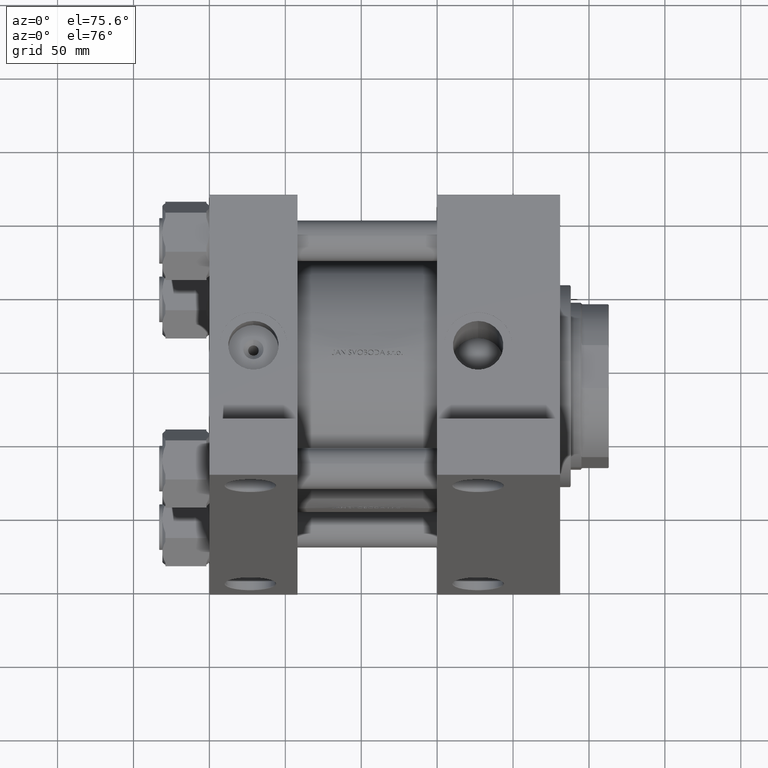
[diagram: clean part render]
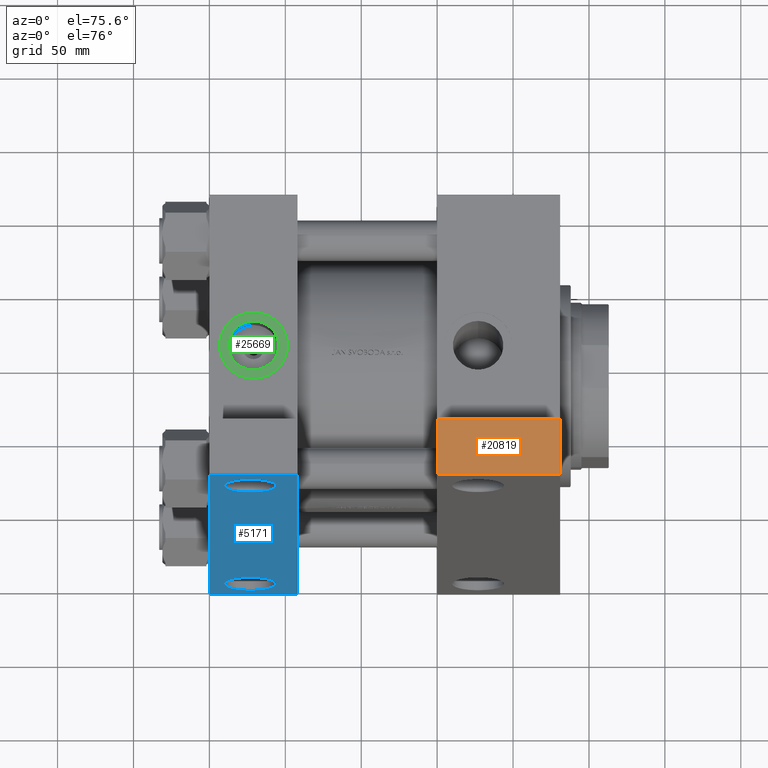
[diagram: same view with three faces highlighted in distinct colors, each labeled with its STEP entity id]
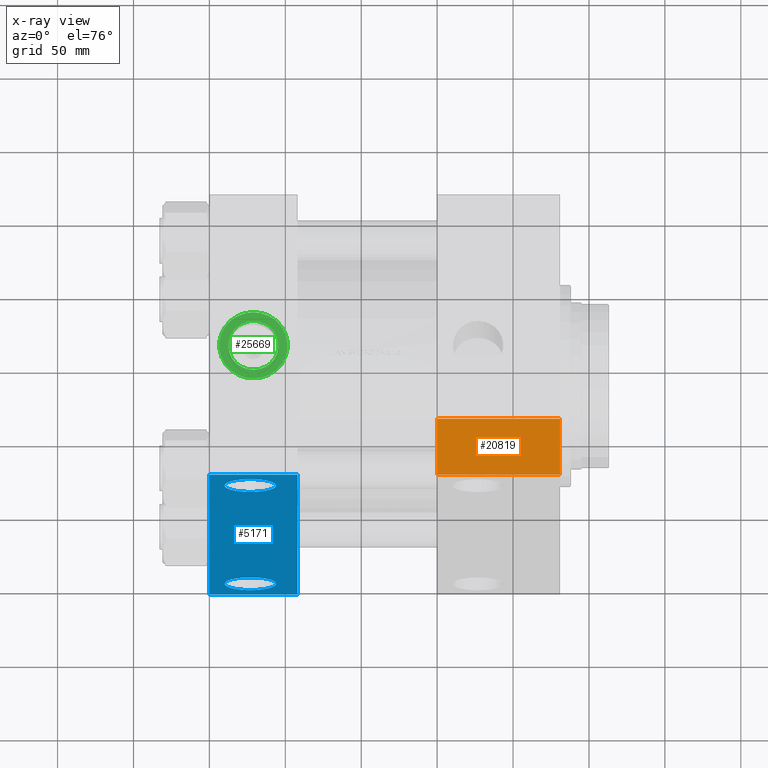
[diagram: x-ray of the same camera — body ghosted, the three highlighted faces saturated]
A machine part, auxiliary view with three faces highlighted in distinct colors.
The next image is the same camera in x-ray (body ghosted, the three faces saturated) — at least one of them is partly hidden behind the body in this view.
Their STEP definitions:

[orange] entity #20819 — the highlighted planar face has unit normal (-0, 0, 1).
#117 = DIRECTION ( 'NONE',  ( -1.000000000000000000, 3.426614273534433207E-16, -0.000000000000000000 ) ) ;
#1903 = EDGE_CURVE ( 'NONE', #18083, #21309, #15664, .T. ) ;
#3632 = CARTESIAN_POINT ( 'NONE',  ( 231.0000000000000284, -159.0000000000000000, -64.50000000000002842 ) ) ;
#5710 = CARTESIAN_POINT ( 'NONE',  ( 150.0000000000000284, -158.9999999999999716, -102.5000000000000284 ) ) ;
#6307 = PLANE ( 'NONE',  #13808 ) ;
#6552 = FACE_OUTER_BOUND ( 'NONE', #45890, .T. ) ;
#10823 = CARTESIAN_POINT ( 'NONE',  ( 150.0000000000000284, -158.9999999999999716, -64.50000000000002842 ) ) ;
#11135 = ORIENTED_EDGE ( 'NONE', *, *, #12142, .F. ) ;
#12142 = EDGE_CURVE ( 'NONE', #31130, #18083, #26023, .T. ) ;
#13690 = EDGE_CURVE ( 'NONE', #31130, #25681, #44151, .T. ) ;
#13808 = AXIS2_PLACEMENT_3D ( 'NONE', #14582, #36231, #29175 ) ;
#14582 = CARTESIAN_POINT ( 'NONE',  ( 150.0000000000000284, -158.9999999999999716, -64.50000000000002842 ) ) ;
#15664 = LINE ( 'NONE', #30495, #29460 ) ;
#18083 = VERTEX_POINT ( 'NONE', #39693 ) ;
#20053 = EDGE_CURVE ( 'NONE', #25681, #21309, #25013, .T. ) ;
#20819 = ADVANCED_FACE ( 'NONE', ( #6552 ), #6307, .T. ) ;
#21102 = VECTOR ( 'NONE', #23073, 1000.000000000000000 ) ;
#21309 = VERTEX_POINT ( 'NONE', #5710 ) ;
#23073 = DIRECTION ( 'NONE',  ( 0.000000000000000000, 0.000000000000000000, -1.000000000000000000 ) ) ;
#24286 = ORIENTED_EDGE ( 'NONE', *, *, #13690, .T. ) ;
#25013 = LINE ( 'NONE', #36466, #26445 ) ;
#25681 = VERTEX_POINT ( 'NONE', #35400 ) ;
#26023 = LINE ( 'NONE', #3632, #21102 ) ;
#26445 = VECTOR ( 'NONE', #40122, 1000.000000000000000 ) ;
#29175 = DIRECTION ( 'NONE',  ( 1.000000000000000000, -3.426614273534433207E-16, 0.000000000000000000 ) ) ;
#29460 = VECTOR ( 'NONE', #36851, 1000.000000000000000 ) ;
#30394 = ORIENTED_EDGE ( 'NONE', *, *, #20053, .T. ) ;
#30495 = CARTESIAN_POINT ( 'NONE',  ( 150.0000000000000284, -158.9999999999999716, -102.5000000000000284 ) ) ;
#31130 = VERTEX_POINT ( 'NONE', #34893 ) ;
#34893 = CARTESIAN_POINT ( 'NONE',  ( 231.0000000000000284, -159.0000000000000000, -64.50000000000002842 ) ) ;
#35400 = CARTESIAN_POINT ( 'NONE',  ( 150.0000000000000284, -158.9999999999999716, -64.50000000000002842 ) ) ;
#35470 = ORIENTED_EDGE ( 'NONE', *, *, #1903, .F. ) ;
#36231 = DIRECTION ( 'NONE',  ( -3.426614273534433207E-16, -1.000000000000000000, 0.000000000000000000 ) ) ;
#36466 = CARTESIAN_POINT ( 'NONE',  ( 150.0000000000000284, -158.9999999999999716, -64.50000000000002842 ) ) ;
#36851 = DIRECTION ( 'NONE',  ( -1.000000000000000000, 3.426614273534433207E-16, -0.000000000000000000 ) ) ;
#39044 = VECTOR ( 'NONE', #117, 1000.000000000000000 ) ;
#39693 = CARTESIAN_POINT ( 'NONE',  ( 231.0000000000000284, -159.0000000000000000, -102.5000000000000284 ) ) ;
#40122 = DIRECTION ( 'NONE',  ( 0.000000000000000000, 0.000000000000000000, -1.000000000000000000 ) ) ;
#44151 = LINE ( 'NONE', #10823, #39044 ) ;
#45890 = EDGE_LOOP ( 'NONE', ( #35470, #11135, #24286, #30394 ) ) ;

[blue] entity #5171 — the highlighted planar face has unit normal (0, -1, -0).
#196 = DIRECTION ( 'NONE',  ( -0.000000000000000000, -1.353930517835556973E-16, 1.000000000000000000 ) ) ;
#382 = VERTEX_POINT ( 'NONE', #44525 ) ;
#1699 = DIRECTION ( 'NONE',  ( 0.000000000000000000, -1.000000000000000000, -1.353930517835556727E-16 ) ) ;
#3182 = VERTEX_POINT ( 'NONE', #7536 ) ;
#5171 = ADVANCED_FACE ( 'NONE', ( #19018, #11722, #33161 ), #41402, .T. ) ;
#5480 = EDGE_CURVE ( 'NONE', #30472, #10961, #45830, .T. ) ;
#6694 = CARTESIAN_POINT ( 'NONE',  ( 58.00000000000000000, -158.9999999999999716, -102.4999999999999574 ) ) ;
#6818 = CIRCLE ( 'NONE', #19238, 16.99949999999981998 ) ;
#6829 = CARTESIAN_POINT ( 'NONE',  ( 43.99949999999981998, -130.0000000000000284, -102.5000000000000000 ) ) ;
#6918 = AXIS2_PLACEMENT_3D ( 'NONE', #18784, #29971, #26556 ) ;
#7306 = VERTEX_POINT ( 'NONE', #18657 ) ;
#7536 = CARTESIAN_POINT ( 'NONE',  ( 4.020885092637420281E-14, 159.0000000000000284, -102.5000000000000142 ) ) ;
#7607 = ORIENTED_EDGE ( 'NONE', *, *, #5480, .T. ) ;
#7723 = DIRECTION ( 'NONE',  ( 0.000000000000000000, 1.000000000000000000, 0.000000000000000000 ) ) ;
#8017 = AXIS2_PLACEMENT_3D ( 'NONE', #16221, #34475, #23508 ) ;
#9486 = CIRCLE ( 'NONE', #18028, 16.99949999999981998 ) ;
#9554 = EDGE_CURVE ( 'NONE', #3182, #7306, #10727, .T. ) ;
#9754 = EDGE_CURVE ( 'NONE', #34811, #7306, #23581, .T. ) ;
#10081 = EDGE_LOOP ( 'NONE', ( #19321, #23514, #25444, #40936 ) ) ;
#10194 = DIRECTION ( 'NONE',  ( -0.000000000000000000, -1.353930517835556973E-16, 1.000000000000000000 ) ) ;
#10727 = LINE ( 'NONE', #44295, #35767 ) ;
#10961 = VERTEX_POINT ( 'NONE', #44444 ) ;
#11722 = FACE_BOUND ( 'NONE', #25590, .T. ) ;
#12910 = EDGE_CURVE ( 'NONE', #382, #31520, #9486, .T. ) ;
#14087 = CARTESIAN_POINT ( 'NONE',  ( 26.99999999999999289, -130.0000000000000284, -102.5000000000000000 ) ) ;
#15560 = EDGE_CURVE ( 'NONE', #10961, #30472, #36789, .T. ) ;
#16221 = CARTESIAN_POINT ( 'NONE',  ( 26.99999999999999289, 129.9999999999999716, -102.4999999999999716 ) ) ;
#16285 = EDGE_CURVE ( 'NONE', #3182, #45602, #30206, .T. ) ;
#17018 = CARTESIAN_POINT ( 'NONE',  ( 58.00000000000000000, 102.5000000000000284, -102.4999999999999716 ) ) ;
#18028 = AXIS2_PLACEMENT_3D ( 'NONE', #40153, #40396, #35778 ) ;
#18077 = CARTESIAN_POINT ( 'NONE',  ( 10.00049999999992245, 129.9999999999999716, -102.4999999999999716 ) ) ;
#18081 = CARTESIAN_POINT ( 'NONE',  ( 4.020885092637420281E-14, 159.0000000000000284, -102.5000000000000142 ) ) ;
#18274 = DIRECTION ( 'NONE',  ( 0.000000000000000000, -1.000000000000000000, -1.353930517835556727E-16 ) ) ;
#18657 = CARTESIAN_POINT ( 'NONE',  ( 1.265082713488378367E-15, -158.9999999999999716, -102.4999999999999574 ) ) ;
#18784 = CARTESIAN_POINT ( 'NONE',  ( 58.00000000000000000, 102.5000000000000284, -102.4999999999999716 ) ) ;
#19018 = FACE_BOUND ( 'NONE', #45108, .T. ) ;
#19238 = AXIS2_PLACEMENT_3D ( 'NONE', #14087, #10194, #40357 ) ;
#19321 = ORIENTED_EDGE ( 'NONE', *, *, #9554, .F. ) ;
#20180 = LINE ( 'NONE', #17018, #35813 ) ;
#22113 = EDGE_CURVE ( 'NONE', #31520, #382, #6818, .T. ) ;
#23508 = DIRECTION ( 'NONE',  ( 0.000000000000000000, 1.000000000000000000, 0.000000000000000000 ) ) ;
#23514 = ORIENTED_EDGE ( 'NONE', *, *, #16285, .T. ) ;
#23581 = LINE ( 'NONE', #31366, #29561 ) ;
#25444 = ORIENTED_EDGE ( 'NONE', *, *, #33282, .T. ) ;
#25590 = EDGE_LOOP ( 'NONE', ( #45508, #39007 ) ) ;
#26311 = DIRECTION ( 'NONE',  ( 1.000000000000000000, 0.000000000000000000, 0.000000000000000000 ) ) ;
#26556 = DIRECTION ( 'NONE',  ( 0.000000000000000000, 1.000000000000000000, 1.353930517835556973E-16 ) ) ;
#28659 = AXIS2_PLACEMENT_3D ( 'NONE', #41047, #196, #7723 ) ;
#29561 = VECTOR ( 'NONE', #34547, 1000.000000000000000 ) ;
#29971 = DIRECTION ( 'NONE',  ( 0.000000000000000000, 1.353930517835556973E-16, -1.000000000000000000 ) ) ;
#30206 = LINE ( 'NONE', #18081, #36011 ) ;
#30472 = VERTEX_POINT ( 'NONE', #18077 ) ;
#31366 = CARTESIAN_POINT ( 'NONE',  ( 1.265082713488378367E-15, -158.9999999999999716, -102.4999999999999574 ) ) ;
#31520 = VERTEX_POINT ( 'NONE', #6829 ) ;
#33161 = FACE_OUTER_BOUND ( 'NONE', #10081, .T. ) ;
#33282 = EDGE_CURVE ( 'NONE', #45602, #34811, #20180, .T. ) ;
#34447 = CARTESIAN_POINT ( 'NONE',  ( 58.00000000000004263, 159.0000000000000284, -102.5000000000000142 ) ) ;
#34475 = DIRECTION ( 'NONE',  ( -0.000000000000000000, -1.353930517835556973E-16, 1.000000000000000000 ) ) ;
#34547 = DIRECTION ( 'NONE',  ( -1.000000000000000000, -0.000000000000000000, -0.000000000000000000 ) ) ;
#34811 = VERTEX_POINT ( 'NONE', #6694 ) ;
#35033 = ORIENTED_EDGE ( 'NONE', *, *, #15560, .T. ) ;
#35767 = VECTOR ( 'NONE', #18274, 1000.000000000000000 ) ;
#35778 = DIRECTION ( 'NONE',  ( 0.000000000000000000, 1.000000000000000000, 0.000000000000000000 ) ) ;
#35813 = VECTOR ( 'NONE', #1699, 1000.000000000000000 ) ;
#36011 = VECTOR ( 'NONE', #26311, 1000.000000000000000 ) ;
#36789 = CIRCLE ( 'NONE', #8017, 16.99950000000005446 ) ;
#39007 = ORIENTED_EDGE ( 'NONE', *, *, #22113, .T. ) ;
#40153 = CARTESIAN_POINT ( 'NONE',  ( 26.99999999999999289, -130.0000000000000284, -102.5000000000000000 ) ) ;
#40357 = DIRECTION ( 'NONE',  ( 0.000000000000000000, 1.000000000000000000, 0.000000000000000000 ) ) ;
#40396 = DIRECTION ( 'NONE',  ( -0.000000000000000000, -1.353930517835556973E-16, 1.000000000000000000 ) ) ;
#40936 = ORIENTED_EDGE ( 'NONE', *, *, #9754, .T. ) ;
#41047 = CARTESIAN_POINT ( 'NONE',  ( 26.99999999999999289, 129.9999999999999716, -102.4999999999999716 ) ) ;
#41402 = PLANE ( 'NONE',  #6918 ) ;
#44295 = CARTESIAN_POINT ( 'NONE',  ( 0.000000000000000000, 102.5000000000000284, -102.4999999999999716 ) ) ;
#44444 = CARTESIAN_POINT ( 'NONE',  ( 43.99950000000006867, 129.9999999999999716, -102.4999999999999716 ) ) ;
#44525 = CARTESIAN_POINT ( 'NONE',  ( 10.00050000000017292, -130.0000000000000284, -102.5000000000000000 ) ) ;
#45108 = EDGE_LOOP ( 'NONE', ( #7607, #35033 ) ) ;
#45508 = ORIENTED_EDGE ( 'NONE', *, *, #12910, .T. ) ;
#45602 = VERTEX_POINT ( 'NONE', #34447 ) ;
#45830 = CIRCLE ( 'NONE', #28659, 16.99950000000005446 ) ;

[green] entity #25669 — the highlighted planar face has unit normal (0, -0, 1).
#248 = CARTESIAN_POINT ( 'NONE',  ( 29.00000000000000000, -102.2999999999999687, 1.389513504257422483E-14 ) ) ;
#662 = EDGE_CURVE ( 'NONE', #33704, #8465, #18518, .T. ) ;
#673 = DIRECTION ( 'NONE',  ( 0.000000000000000000, 0.000000000000000000, -1.000000000000000000 ) ) ;
#1179 = CIRCLE ( 'NONE', #26809, 22.50000000000000711 ) ;
#3566 = CARTESIAN_POINT ( 'NONE',  ( 29.00000000000000000, -102.2999999999999687, 1.389513504257422798E-14 ) ) ;
#4117 = DIRECTION ( 'NONE',  ( 0.000000000000000000, -1.000000000000000000, -8.673617379884036705E-17 ) ) ;
#4334 = FACE_BOUND ( 'NONE', #40822, .T. ) ;
#4544 = AXIS2_PLACEMENT_3D ( 'NONE', #23274, #20112, #673 ) ;
#4634 = CARTESIAN_POINT ( 'NONE',  ( 29.00000000000000000, -102.2999999999999687, 1.389513504257422483E-14 ) ) ;
#5415 = ORIENTED_EDGE ( 'NONE', *, *, #662, .F. ) ;
#6505 = DIRECTION ( 'NONE',  ( 0.000000000000000000, 0.000000000000000000, -1.000000000000000000 ) ) ;
#7512 = ORIENTED_EDGE ( 'NONE', *, *, #46608, .T. ) ;
#7755 = AXIS2_PLACEMENT_3D ( 'NONE', #42935, #34256, #42039 ) ;
#8465 = VERTEX_POINT ( 'NONE', #16402 ) ;
#10379 = VERTEX_POINT ( 'NONE', #11062 ) ;
#10927 = ORIENTED_EDGE ( 'NONE', *, *, #24187, .F. ) ;
#11062 = CARTESIAN_POINT ( 'NONE',  ( 29.00000000000000000, -102.2999999999999687, -22.49999999999999289 ) ) ;
#11886 = PLANE ( 'NONE',  #7755 ) ;
#12188 = DIRECTION ( 'NONE',  ( 0.000000000000000000, -1.000000000000000000, -8.673617379884036705E-17 ) ) ;
#13104 = CIRCLE ( 'NONE', #30178, 16.62000000000000099 ) ;
#13339 = EDGE_LOOP ( 'NONE', ( #26224, #7512 ) ) ;
#14302 = DIRECTION ( 'NONE',  ( 0.000000000000000000, -1.000000000000000000, -8.673617379884036705E-17 ) ) ;
#15912 = CIRCLE ( 'NONE', #43095, 22.50000000000000711 ) ;
#16018 = FACE_OUTER_BOUND ( 'NONE', #13339, .T. ) ;
#16402 = CARTESIAN_POINT ( 'NONE',  ( 29.00000000000000355, -102.2999999999999687, 16.62000000000001165 ) ) ;
#18518 = CIRCLE ( 'NONE', #4544, 16.62000000000000099 ) ;
#20112 = DIRECTION ( 'NONE',  ( 0.000000000000000000, -1.000000000000000000, -8.673617379884036705E-17 ) ) ;
#23274 = CARTESIAN_POINT ( 'NONE',  ( 29.00000000000000000, -102.2999999999999687, 1.389513504257422798E-14 ) ) ;
#24187 = EDGE_CURVE ( 'NONE', #8465, #33704, #13104, .T. ) ;
#24296 = CARTESIAN_POINT ( 'NONE',  ( 29.00000000000000355, -102.2999999999999687, 22.50000000000002132 ) ) ;
#25669 = ADVANCED_FACE ( 'NONE', ( #4334, #16018 ), #11886, .T. ) ;
#26224 = ORIENTED_EDGE ( 'NONE', *, *, #42398, .T. ) ;
#26809 = AXIS2_PLACEMENT_3D ( 'NONE', #248, #4117, #47677 ) ;
#30178 = AXIS2_PLACEMENT_3D ( 'NONE', #3566, #14302, #6505 ) ;
#33704 = VERTEX_POINT ( 'NONE', #35344 ) ;
#34256 = DIRECTION ( 'NONE',  ( 0.000000000000000000, -1.000000000000000000, -8.673617379884036705E-17 ) ) ;
#35344 = CARTESIAN_POINT ( 'NONE',  ( 29.00000000000000000, -102.2999999999999687, -16.61999999999998678 ) ) ;
#40822 = EDGE_LOOP ( 'NONE', ( #5415, #10927 ) ) ;
#41138 = DIRECTION ( 'NONE',  ( 0.000000000000000000, 0.000000000000000000, -1.000000000000000000 ) ) ;
#42039 = DIRECTION ( 'NONE',  ( 0.000000000000000000, 8.673617379884036705E-17, -1.000000000000000000 ) ) ;
#42398 = EDGE_CURVE ( 'NONE', #10379, #43321, #1179, .T. ) ;
#42935 = CARTESIAN_POINT ( 'NONE',  ( 29.00000000000000000, -102.2999999999999687, 1.389513504257422483E-14 ) ) ;
#43095 = AXIS2_PLACEMENT_3D ( 'NONE', #4634, #12188, #41138 ) ;
#43321 = VERTEX_POINT ( 'NONE', #24296 ) ;
#46608 = EDGE_CURVE ( 'NONE', #43321, #10379, #15912, .T. ) ;
#47677 = DIRECTION ( 'NONE',  ( 0.000000000000000000, 0.000000000000000000, -1.000000000000000000 ) ) ;